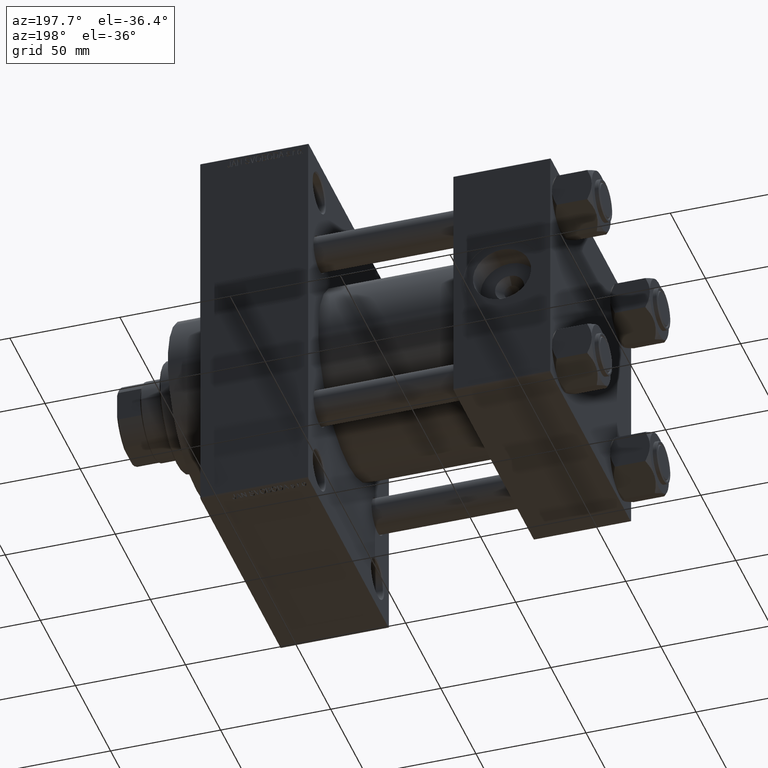
[diagram: clean part render]
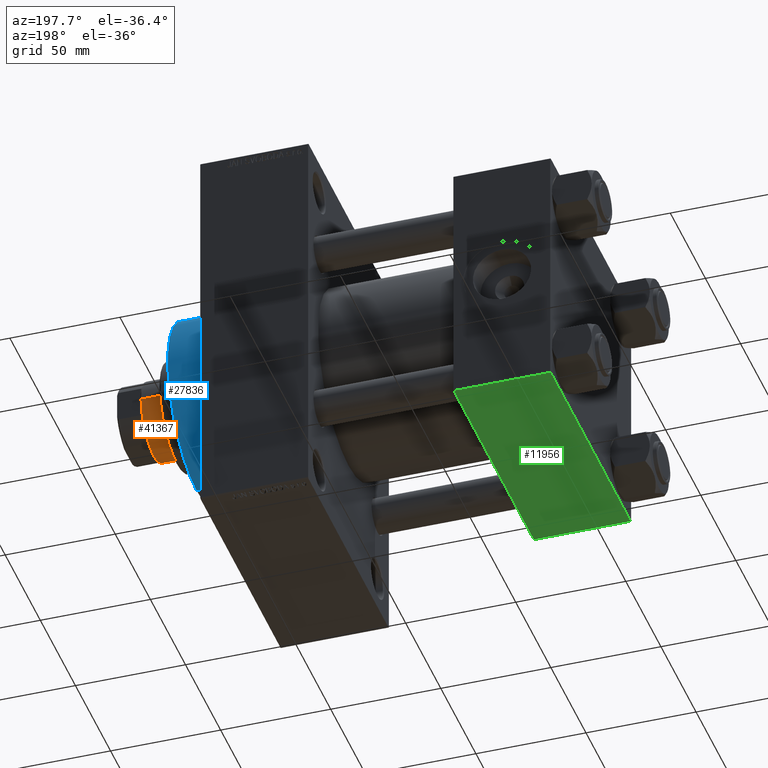
[diagram: same view with three faces highlighted in distinct colors, each labeled with its STEP entity id]
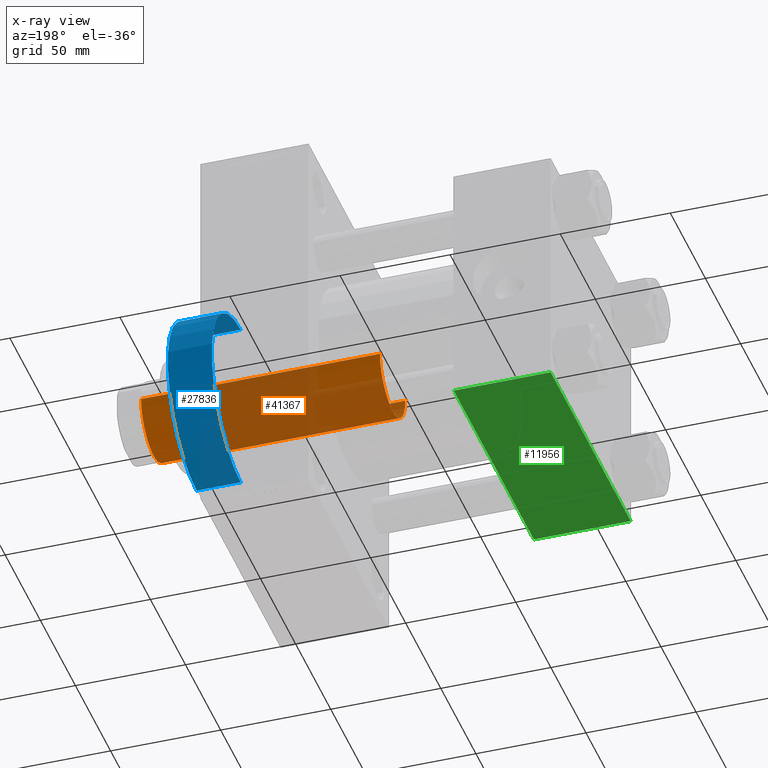
[diagram: x-ray of the same camera — body ghosted, the three highlighted faces saturated]
A machine part, auxiliary view with three faces highlighted in distinct colors.
The next image is the same camera in x-ray (body ghosted, the three faces saturated) — at least one of them is partly hidden behind the body in this view.
Their STEP definitions:

[orange] entity #41367 — the highlighted cylindrical surface (partial cylindrical patch) has radius 18 mm, axis along (-1, 0, 0).
#146 = VERTEX_POINT ( 'NONE', #42095 ) ;
#831 = AXIS2_PLACEMENT_3D ( 'NONE', #9406, #32188, #16419 ) ;
#927 = EDGE_LOOP ( 'NONE', ( #41891, #31804, #25883, #10449 ) ) ;
#1770 = DIRECTION ( 'NONE',  ( 0.000000000000000000, 0.000000000000000000, 1.000000000000000000 ) ) ;
#2299 = VECTOR ( 'NONE', #5948, 1000.000000000000000 ) ;
#3001 = AXIS2_PLACEMENT_3D ( 'NONE', #39537, #1770, #17020 ) ;
#4403 = DIRECTION ( 'NONE',  ( -0.000000000000000000, -0.000000000000000000, -1.000000000000000000 ) ) ;
#4901 = CYLINDRICAL_SURFACE ( 'NONE', #19486, 18.00000000000000000 ) ;
#5948 = DIRECTION ( 'NONE',  ( -0.000000000000000000, -0.000000000000000000, -1.000000000000000000 ) ) ;
#6043 = EDGE_CURVE ( 'NONE', #11996, #146, #30121, .T. ) ;
#8148 = CARTESIAN_POINT ( 'NONE',  ( 18.00000000000000000, 2.204364238465235428E-15, 154.4999999999999716 ) ) ;
#9406 = CARTESIAN_POINT ( 'NONE',  ( 0.000000000000000000, 0.000000000000000000, 154.4999999999999716 ) ) ;
#10194 = CARTESIAN_POINT ( 'NONE',  ( 18.00000000000000000, 2.204364238465235428E-15, 155.0000000000000000 ) ) ;
#10449 = ORIENTED_EDGE ( 'NONE', *, *, #24814, .F. ) ;
#11996 = VERTEX_POINT ( 'NONE', #34088 ) ;
#15027 = EDGE_CURVE ( 'NONE', #15161, #40666, #31149, .T. ) ;
#15161 = VERTEX_POINT ( 'NONE', #39935 ) ;
#16419 = DIRECTION ( 'NONE',  ( 1.000000000000000000, 0.000000000000000000, 0.000000000000000000 ) ) ;
#17020 = DIRECTION ( 'NONE',  ( 1.000000000000000000, 0.000000000000000000, 0.000000000000000000 ) ) ;
#19486 = AXIS2_PLACEMENT_3D ( 'NONE', #23417, #4403, #42669 ) ;
#23417 = CARTESIAN_POINT ( 'NONE',  ( 0.000000000000000000, 0.000000000000000000, 155.0000000000000000 ) ) ;
#23650 = FACE_OUTER_BOUND ( 'NONE', #927, .T. ) ;
#24814 = EDGE_CURVE ( 'NONE', #15161, #146, #25766, .T. ) ;
#25081 = EDGE_CURVE ( 'NONE', #40666, #11996, #44455, .T. ) ;
#25766 = LINE ( 'NONE', #38002, #37427 ) ;
#25883 = ORIENTED_EDGE ( 'NONE', *, *, #6043, .T. ) ;
#30121 = CIRCLE ( 'NONE', #3001, 18.00000000000000000 ) ;
#31149 = CIRCLE ( 'NONE', #831, 18.00000000000000000 ) ;
#31804 = ORIENTED_EDGE ( 'NONE', *, *, #25081, .T. ) ;
#32188 = DIRECTION ( 'NONE',  ( 0.000000000000000000, 0.000000000000000000, -1.000000000000000000 ) ) ;
#34088 = CARTESIAN_POINT ( 'NONE',  ( 18.00000000000000000, 2.204364238465235428E-15, 46.00000000000000000 ) ) ;
#37427 = VECTOR ( 'NONE', #42002, 1000.000000000000000 ) ;
#38002 = CARTESIAN_POINT ( 'NONE',  ( -18.00000000000000000, 0.000000000000000000, 155.0000000000000000 ) ) ;
#39537 = CARTESIAN_POINT ( 'NONE',  ( 0.000000000000000000, 0.000000000000000000, 46.00000000000000000 ) ) ;
#39935 = CARTESIAN_POINT ( 'NONE',  ( -18.00000000000000000, 0.000000000000000000, 154.4999999999999716 ) ) ;
#40666 = VERTEX_POINT ( 'NONE', #8148 ) ;
#41367 = ADVANCED_FACE ( 'NONE', ( #23650 ), #4901, .T. ) ;
#41891 = ORIENTED_EDGE ( 'NONE', *, *, #15027, .T. ) ;
#42002 = DIRECTION ( 'NONE',  ( -0.000000000000000000, -0.000000000000000000, -1.000000000000000000 ) ) ;
#42095 = CARTESIAN_POINT ( 'NONE',  ( -18.00000000000000000, 0.000000000000000000, 46.00000000000000000 ) ) ;
#42669 = DIRECTION ( 'NONE',  ( -1.000000000000000000, 0.000000000000000000, 0.000000000000000000 ) ) ;
#44455 = LINE ( 'NONE', #10194, #2299 ) ;

[blue] entity #27836 — the highlighted cylindrical surface (partial cylindrical patch) has radius 41 mm, axis along (-1, -0, -0).
#380 = VECTOR ( 'NONE', #28655, 1000.000000000000000 ) ;
#1408 = LINE ( 'NONE', #9393, #380 ) ;
#1606 = EDGE_CURVE ( 'NONE', #33879, #48227, #34806, .T. ) ;
#2119 = EDGE_CURVE ( 'NONE', #27141, #48227, #46998, .T. ) ;
#4513 = CARTESIAN_POINT ( 'NONE',  ( 179.0000000000000000, 0.000000000000000000, 0.000000000000000000 ) ) ;
#5239 = VECTOR ( 'NONE', #8722, 1000.000000000000000 ) ;
#7602 = DIRECTION ( 'NONE',  ( 0.000000000000000000, 0.000000000000000000, 1.000000000000000000 ) ) ;
#8722 = DIRECTION ( 'NONE',  ( -1.000000000000000000, -0.000000000000000000, -0.000000000000000000 ) ) ;
#9393 = CARTESIAN_POINT ( 'NONE',  ( 179.0000000000000000, 5.021051876504148963E-15, -41.00000000000000000 ) ) ;
#10495 = DIRECTION ( 'NONE',  ( 1.000000000000000000, 0.000000000000000000, 0.000000000000000000 ) ) ;
#11369 = CYLINDRICAL_SURFACE ( 'NONE', #24801, 41.00000000000000000 ) ;
#11769 = CARTESIAN_POINT ( 'NONE',  ( 159.0000000000000000, 0.000000000000000000, 41.00000000000000000 ) ) ;
#14692 = VERTEX_POINT ( 'NONE', #35743 ) ;
#15706 = ORIENTED_EDGE ( 'NONE', *, *, #42661, .T. ) ;
#21941 = ORIENTED_EDGE ( 'NONE', *, *, #1606, .T. ) ;
#23799 = ORIENTED_EDGE ( 'NONE', *, *, #48294, .F. ) ;
#24404 = EDGE_LOOP ( 'NONE', ( #23799, #15706, #21941, #29162 ) ) ;
#24801 = AXIS2_PLACEMENT_3D ( 'NONE', #26621, #41886, #7602 ) ;
#25749 = DIRECTION ( 'NONE',  ( 0.000000000000000000, 0.000000000000000000, -1.000000000000000000 ) ) ;
#26290 = CIRCLE ( 'NONE', #32690, 41.00000000000000000 ) ;
#26621 = CARTESIAN_POINT ( 'NONE',  ( 179.0000000000000000, 0.000000000000000000, 0.000000000000000000 ) ) ;
#26804 = AXIS2_PLACEMENT_3D ( 'NONE', #44758, #10495, #25749 ) ;
#26857 = FACE_OUTER_BOUND ( 'NONE', #24404, .T. ) ;
#27141 = VERTEX_POINT ( 'NONE', #46228 ) ;
#27836 = ADVANCED_FACE ( 'NONE', ( #26857 ), #11369, .T. ) ;
#28655 = DIRECTION ( 'NONE',  ( -1.000000000000000000, -0.000000000000000000, -0.000000000000000000 ) ) ;
#29162 = ORIENTED_EDGE ( 'NONE', *, *, #2119, .F. ) ;
#31247 = CARTESIAN_POINT ( 'NONE',  ( 179.0000000000000000, 0.000000000000000000, 41.00000000000000000 ) ) ;
#32690 = AXIS2_PLACEMENT_3D ( 'NONE', #4513, #35536, #39531 ) ;
#33879 = VERTEX_POINT ( 'NONE', #38055 ) ;
#34806 = CIRCLE ( 'NONE', #26804, 41.00000000000000000 ) ;
#35536 = DIRECTION ( 'NONE',  ( 1.000000000000000000, 0.000000000000000000, 0.000000000000000000 ) ) ;
#35743 = CARTESIAN_POINT ( 'NONE',  ( 179.0000000000000000, 5.021051876504148963E-15, -41.00000000000000000 ) ) ;
#38055 = CARTESIAN_POINT ( 'NONE',  ( 159.0000000000000000, 5.021051876504148963E-15, -41.00000000000000000 ) ) ;
#39531 = DIRECTION ( 'NONE',  ( 0.000000000000000000, 0.000000000000000000, -1.000000000000000000 ) ) ;
#41886 = DIRECTION ( 'NONE',  ( -1.000000000000000000, -0.000000000000000000, -0.000000000000000000 ) ) ;
#42661 = EDGE_CURVE ( 'NONE', #14692, #33879, #1408, .T. ) ;
#44758 = CARTESIAN_POINT ( 'NONE',  ( 159.0000000000000000, 0.000000000000000000, 0.000000000000000000 ) ) ;
#46228 = CARTESIAN_POINT ( 'NONE',  ( 179.0000000000000000, 0.000000000000000000, 41.00000000000000000 ) ) ;
#46998 = LINE ( 'NONE', #31247, #5239 ) ;
#48227 = VERTEX_POINT ( 'NONE', #11769 ) ;
#48294 = EDGE_CURVE ( 'NONE', #14692, #27141, #26290, .T. ) ;

[green] entity #11956 — the highlighted planar face has unit normal (0, 0, -1).
#125 = CARTESIAN_POINT ( 'NONE',  ( 44.00000000000000000, -57.00000000000001421, -57.50000000000000711 ) ) ;
#2104 = DIRECTION ( 'NONE',  ( 0.000000000000000000, 1.206764157201257291E-16, -1.000000000000000000 ) ) ;
#3920 = CARTESIAN_POINT ( 'NONE',  ( 44.00000000000000000, 57.00000000000002842, -57.49999999999999289 ) ) ;
#3996 = AXIS2_PLACEMENT_3D ( 'NONE', #10086, #2104, #6343 ) ;
#5521 = EDGE_CURVE ( 'NONE', #33599, #29670, #26114, .T. ) ;
#6343 = DIRECTION ( 'NONE',  ( 0.000000000000000000, 1.000000000000000000, 1.206764157201257291E-16 ) ) ;
#8088 = DIRECTION ( 'NONE',  ( -1.000000000000000000, 0.000000000000000000, 0.000000000000000000 ) ) ;
#8275 = EDGE_LOOP ( 'NONE', ( #11130, #43297, #9895, #12044 ) ) ;
#9895 = ORIENTED_EDGE ( 'NONE', *, *, #29537, .T. ) ;
#10086 = CARTESIAN_POINT ( 'NONE',  ( 44.00000000000000000, 57.50000000000000000, -57.49999999999999289 ) ) ;
#11112 = CARTESIAN_POINT ( 'NONE',  ( 0.000000000000000000, -57.00000000000001421, -57.50000000000000711 ) ) ;
#11130 = ORIENTED_EDGE ( 'NONE', *, *, #15695, .F. ) ;
#11870 = VERTEX_POINT ( 'NONE', #17850 ) ;
#11956 = ADVANCED_FACE ( 'NONE', ( #25348 ), #36613, .T. ) ;
#12044 = ORIENTED_EDGE ( 'NONE', *, *, #5521, .T. ) ;
#14216 = DIRECTION ( 'NONE',  ( 0.000000000000000000, -1.000000000000000000, -1.206764157201257291E-16 ) ) ;
#15695 = EDGE_CURVE ( 'NONE', #11870, #29670, #18465, .T. ) ;
#16031 = VECTOR ( 'NONE', #37780, 1000.000000000000000 ) ;
#17850 = CARTESIAN_POINT ( 'NONE',  ( 0.000000000000000000, 57.00000000000002842, -57.49999999999999289 ) ) ;
#18465 = LINE ( 'NONE', #41237, #40081 ) ;
#22525 = CARTESIAN_POINT ( 'NONE',  ( 44.00000000000000000, 57.50000000000000000, -57.49999999999999289 ) ) ;
#25226 = CARTESIAN_POINT ( 'NONE',  ( 0.000000000000000000, -57.00000000000001421, -57.50000000000000711 ) ) ;
#25241 = EDGE_CURVE ( 'NONE', #11870, #34025, #33952, .T. ) ;
#25348 = FACE_OUTER_BOUND ( 'NONE', #8275, .T. ) ;
#26114 = LINE ( 'NONE', #11112, #29343 ) ;
#28276 = CARTESIAN_POINT ( 'NONE',  ( 44.00000000000000000, 57.00000000000002842, -57.49999999999999289 ) ) ;
#29343 = VECTOR ( 'NONE', #8088, 1000.000000000000000 ) ;
#29537 = EDGE_CURVE ( 'NONE', #34025, #33599, #49037, .T. ) ;
#29670 = VERTEX_POINT ( 'NONE', #25226 ) ;
#33599 = VERTEX_POINT ( 'NONE', #125 ) ;
#33952 = LINE ( 'NONE', #3920, #43021 ) ;
#34025 = VERTEX_POINT ( 'NONE', #28276 ) ;
#36613 = PLANE ( 'NONE',  #3996 ) ;
#37780 = DIRECTION ( 'NONE',  ( 0.000000000000000000, -1.000000000000000000, -1.206764157201257291E-16 ) ) ;
#37943 = DIRECTION ( 'NONE',  ( 1.000000000000000000, 0.000000000000000000, 0.000000000000000000 ) ) ;
#40081 = VECTOR ( 'NONE', #14216, 1000.000000000000000 ) ;
#41237 = CARTESIAN_POINT ( 'NONE',  ( 0.000000000000000000, 57.50000000000000000, -57.49999999999999289 ) ) ;
#43021 = VECTOR ( 'NONE', #37943, 1000.000000000000000 ) ;
#43297 = ORIENTED_EDGE ( 'NONE', *, *, #25241, .T. ) ;
#49037 = LINE ( 'NONE', #22525, #16031 ) ;